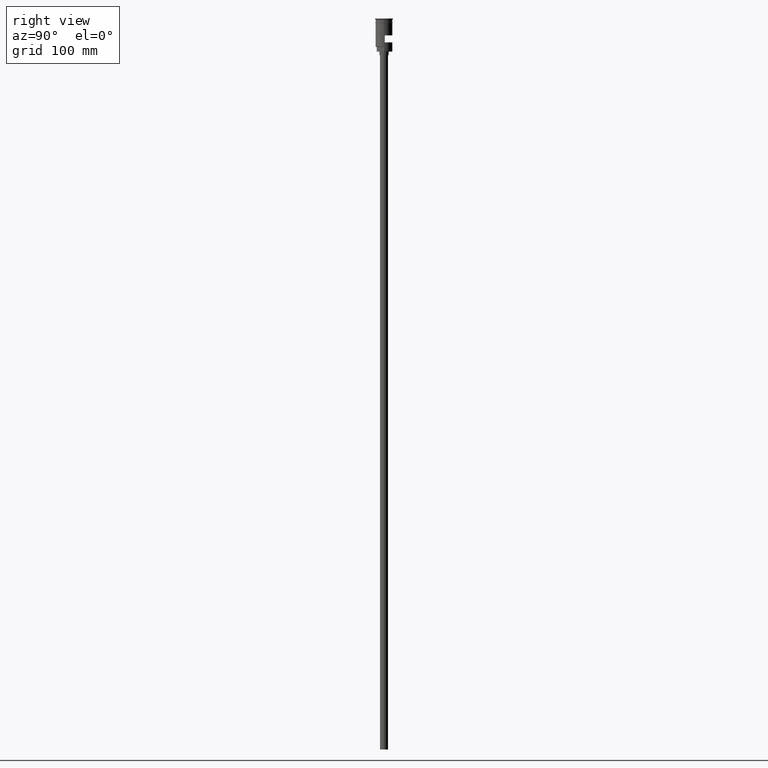
[diagram: clean part render]
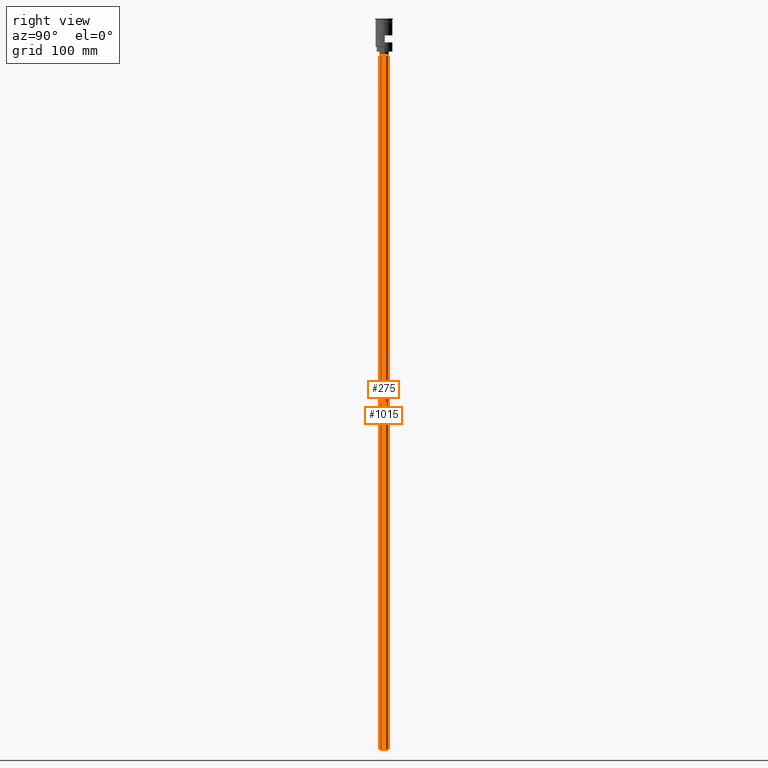
[diagram: same view with one multi-face feature highlighted, each face labeled with its STEP entity id]
A machine part, right view. The highlighted faces form ONE feature: a constant-radius fillet chain: 2 tangent blend faces with common blend radius 3.5 mm. The faces share edges in the B-rep.
Their STEP definitions:
[1] entity #275 (Cylinder):
#40 = VERTEX_POINT ( 'NONE', #1169 ) ;
#52 = AXIS2_PLACEMENT_3D ( 'NONE', #504, #1235, #523 ) ;
#59 = ORIENTED_EDGE ( 'NONE', *, *, #193, .F. ) ;
#62 = CARTESIAN_POINT ( 'NONE',  ( 3.500000000000000444, 0.000000000000000000, -628.5000000000000000 ) ) ;
#68 = CARTESIAN_POINT ( 'NONE',  ( 0.000000000000000000, 0.000000000000000000, -31.50000000000000000 ) ) ;
#114 = DIRECTION ( 'NONE',  ( -1.000000000000000000, 0.000000000000000000, 0.000000000000000000 ) ) ;
#125 = VECTOR ( 'NONE', #190, 1000.000000000000000 ) ;
#128 = ORIENTED_EDGE ( 'NONE', *, *, #557, .F. ) ;
#190 = DIRECTION ( 'NONE',  ( -0.000000000000000000, -0.000000000000000000, 1.000000000000000000 ) ) ;
#193 = EDGE_CURVE ( 'NONE', #636, #40, #1199, .T. ) ;
#206 = CIRCLE ( 'NONE', #286, 3.500000000000000444 ) ;
#223 = DIRECTION ( 'NONE',  ( 0.000000000000000000, 0.000000000000000000, -1.000000000000000000 ) ) ;
#225 = CARTESIAN_POINT ( 'NONE',  ( -3.500000000000000444, 4.286263797015737088E-16, -628.5000000000000000 ) ) ;
#241 = DIRECTION ( 'NONE',  ( -0.000000000000000000, -0.000000000000000000, 1.000000000000000000 ) ) ;
#275 = ADVANCED_FACE ( 'NONE', ( #741 ), #768, .T. ) ;
#286 = AXIS2_PLACEMENT_3D ( 'NONE', #68, #1435, #818 ) ;
#335 = VERTEX_POINT ( 'NONE', #870 ) ;
#483 = AXIS2_PLACEMENT_3D ( 'NONE', #715, #223, #114 ) ;
#504 = CARTESIAN_POINT ( 'NONE',  ( 0.000000000000000000, 0.000000000000000000, -628.5000000000000000 ) ) ;
#523 = DIRECTION ( 'NONE',  ( 1.000000000000000000, 0.000000000000000000, 0.000000000000000000 ) ) ;
#557 = EDGE_CURVE ( 'NONE', #1562, #636, #1570, .T. ) ;
#583 = ORIENTED_EDGE ( 'NONE', *, *, #1344, .T. ) ;
#629 = CARTESIAN_POINT ( 'NONE',  ( 3.500000000000000444, 0.000000000000000000, -628.5000000000000000 ) ) ;
#636 = VERTEX_POINT ( 'NONE', #861 ) ;
#715 = CARTESIAN_POINT ( 'NONE',  ( 0.000000000000000000, 0.000000000000000000, -628.5000000000000000 ) ) ;
#741 = FACE_OUTER_BOUND ( 'NONE', #1381, .T. ) ;
#768 = CYLINDRICAL_SURFACE ( 'NONE', #52, 3.500000000000000444 ) ;
#818 = DIRECTION ( 'NONE',  ( -1.000000000000000000, 0.000000000000000000, 0.000000000000000000 ) ) ;
#861 = CARTESIAN_POINT ( 'NONE',  ( -3.500000000000000444, 4.286263797015737088E-16, -628.5000000000000000 ) ) ;
#870 = CARTESIAN_POINT ( 'NONE',  ( 3.500000000000000444, 0.000000000000000000, -31.50000000000000000 ) ) ;
#988 = ORIENTED_EDGE ( 'NONE', *, *, #1362, .T. ) ;
#1169 = CARTESIAN_POINT ( 'NONE',  ( -3.500000000000000444, 4.286263797015737088E-16, -31.50000000000000000 ) ) ;
#1173 = LINE ( 'NONE', #62, #125 ) ;
#1199 = LINE ( 'NONE', #225, #1526 ) ;
#1235 = DIRECTION ( 'NONE',  ( -0.000000000000000000, -0.000000000000000000, 1.000000000000000000 ) ) ;
#1344 = EDGE_CURVE ( 'NONE', #1562, #335, #1173, .T. ) ;
#1362 = EDGE_CURVE ( 'NONE', #335, #40, #206, .T. ) ;
#1381 = EDGE_LOOP ( 'NONE', ( #59, #128, #583, #988 ) ) ;
#1435 = DIRECTION ( 'NONE',  ( 0.000000000000000000, 0.000000000000000000, -1.000000000000000000 ) ) ;
#1526 = VECTOR ( 'NONE', #241, 1000.000000000000000 ) ;
#1562 = VERTEX_POINT ( 'NONE', #629 ) ;
#1570 = CIRCLE ( 'NONE', #483, 3.500000000000000444 ) ;
[2] entity #1015 (Cylinder):
#40 = VERTEX_POINT ( 'NONE', #1169 ) ;
#62 = CARTESIAN_POINT ( 'NONE',  ( 3.500000000000000444, 0.000000000000000000, -628.5000000000000000 ) ) ;
#125 = VECTOR ( 'NONE', #190, 1000.000000000000000 ) ;
#133 = FACE_OUTER_BOUND ( 'NONE', #1272, .T. ) ;
#139 = DIRECTION ( 'NONE',  ( 0.000000000000000000, 0.000000000000000000, -1.000000000000000000 ) ) ;
#166 = DIRECTION ( 'NONE',  ( 0.000000000000000000, 0.000000000000000000, -1.000000000000000000 ) ) ;
#190 = DIRECTION ( 'NONE',  ( -0.000000000000000000, -0.000000000000000000, 1.000000000000000000 ) ) ;
#193 = EDGE_CURVE ( 'NONE', #636, #40, #1199, .T. ) ;
#225 = CARTESIAN_POINT ( 'NONE',  ( -3.500000000000000444, 4.286263797015737088E-16, -628.5000000000000000 ) ) ;
#241 = DIRECTION ( 'NONE',  ( -0.000000000000000000, -0.000000000000000000, 1.000000000000000000 ) ) ;
#282 = DIRECTION ( 'NONE',  ( 1.000000000000000000, 0.000000000000000000, 0.000000000000000000 ) ) ;
#335 = VERTEX_POINT ( 'NONE', #870 ) ;
#361 = AXIS2_PLACEMENT_3D ( 'NONE', #1250, #139, #641 ) ;
#486 = CIRCLE ( 'NONE', #361, 3.500000000000000444 ) ;
#614 = CIRCLE ( 'NONE', #1473, 3.500000000000000444 ) ;
#626 = DIRECTION ( 'NONE',  ( -0.000000000000000000, -0.000000000000000000, 1.000000000000000000 ) ) ;
#629 = CARTESIAN_POINT ( 'NONE',  ( 3.500000000000000444, 0.000000000000000000, -628.5000000000000000 ) ) ;
#636 = VERTEX_POINT ( 'NONE', #861 ) ;
#641 = DIRECTION ( 'NONE',  ( -1.000000000000000000, 0.000000000000000000, 0.000000000000000000 ) ) ;
#725 = ORIENTED_EDGE ( 'NONE', *, *, #193, .T. ) ;
#804 = AXIS2_PLACEMENT_3D ( 'NONE', #1000, #626, #282 ) ;
#861 = CARTESIAN_POINT ( 'NONE',  ( -3.500000000000000444, 4.286263797015737088E-16, -628.5000000000000000 ) ) ;
#870 = CARTESIAN_POINT ( 'NONE',  ( 3.500000000000000444, 0.000000000000000000, -31.50000000000000000 ) ) ;
#895 = CYLINDRICAL_SURFACE ( 'NONE', #804, 3.500000000000000444 ) ;
#1000 = CARTESIAN_POINT ( 'NONE',  ( 0.000000000000000000, 0.000000000000000000, -628.5000000000000000 ) ) ;
#1015 = ADVANCED_FACE ( 'NONE', ( #133 ), #895, .T. ) ;
#1044 = CARTESIAN_POINT ( 'NONE',  ( 0.000000000000000000, 0.000000000000000000, -31.50000000000000000 ) ) ;
#1169 = CARTESIAN_POINT ( 'NONE',  ( -3.500000000000000444, 4.286263797015737088E-16, -31.50000000000000000 ) ) ;
#1173 = LINE ( 'NONE', #62, #125 ) ;
#1184 = EDGE_CURVE ( 'NONE', #636, #1562, #486, .T. ) ;
#1199 = LINE ( 'NONE', #225, #1526 ) ;
#1211 = EDGE_CURVE ( 'NONE', #40, #335, #614, .T. ) ;
#1225 = ORIENTED_EDGE ( 'NONE', *, *, #1184, .F. ) ;
#1250 = CARTESIAN_POINT ( 'NONE',  ( 0.000000000000000000, 0.000000000000000000, -628.5000000000000000 ) ) ;
#1272 = EDGE_LOOP ( 'NONE', ( #1225, #725, #1317, #1333 ) ) ;
#1317 = ORIENTED_EDGE ( 'NONE', *, *, #1211, .T. ) ;
#1333 = ORIENTED_EDGE ( 'NONE', *, *, #1344, .F. ) ;
#1344 = EDGE_CURVE ( 'NONE', #1562, #335, #1173, .T. ) ;
#1416 = DIRECTION ( 'NONE',  ( -1.000000000000000000, 0.000000000000000000, 0.000000000000000000 ) ) ;
#1473 = AXIS2_PLACEMENT_3D ( 'NONE', #1044, #166, #1416 ) ;
#1526 = VECTOR ( 'NONE', #241, 1000.000000000000000 ) ;
#1562 = VERTEX_POINT ( 'NONE', #629 ) ;